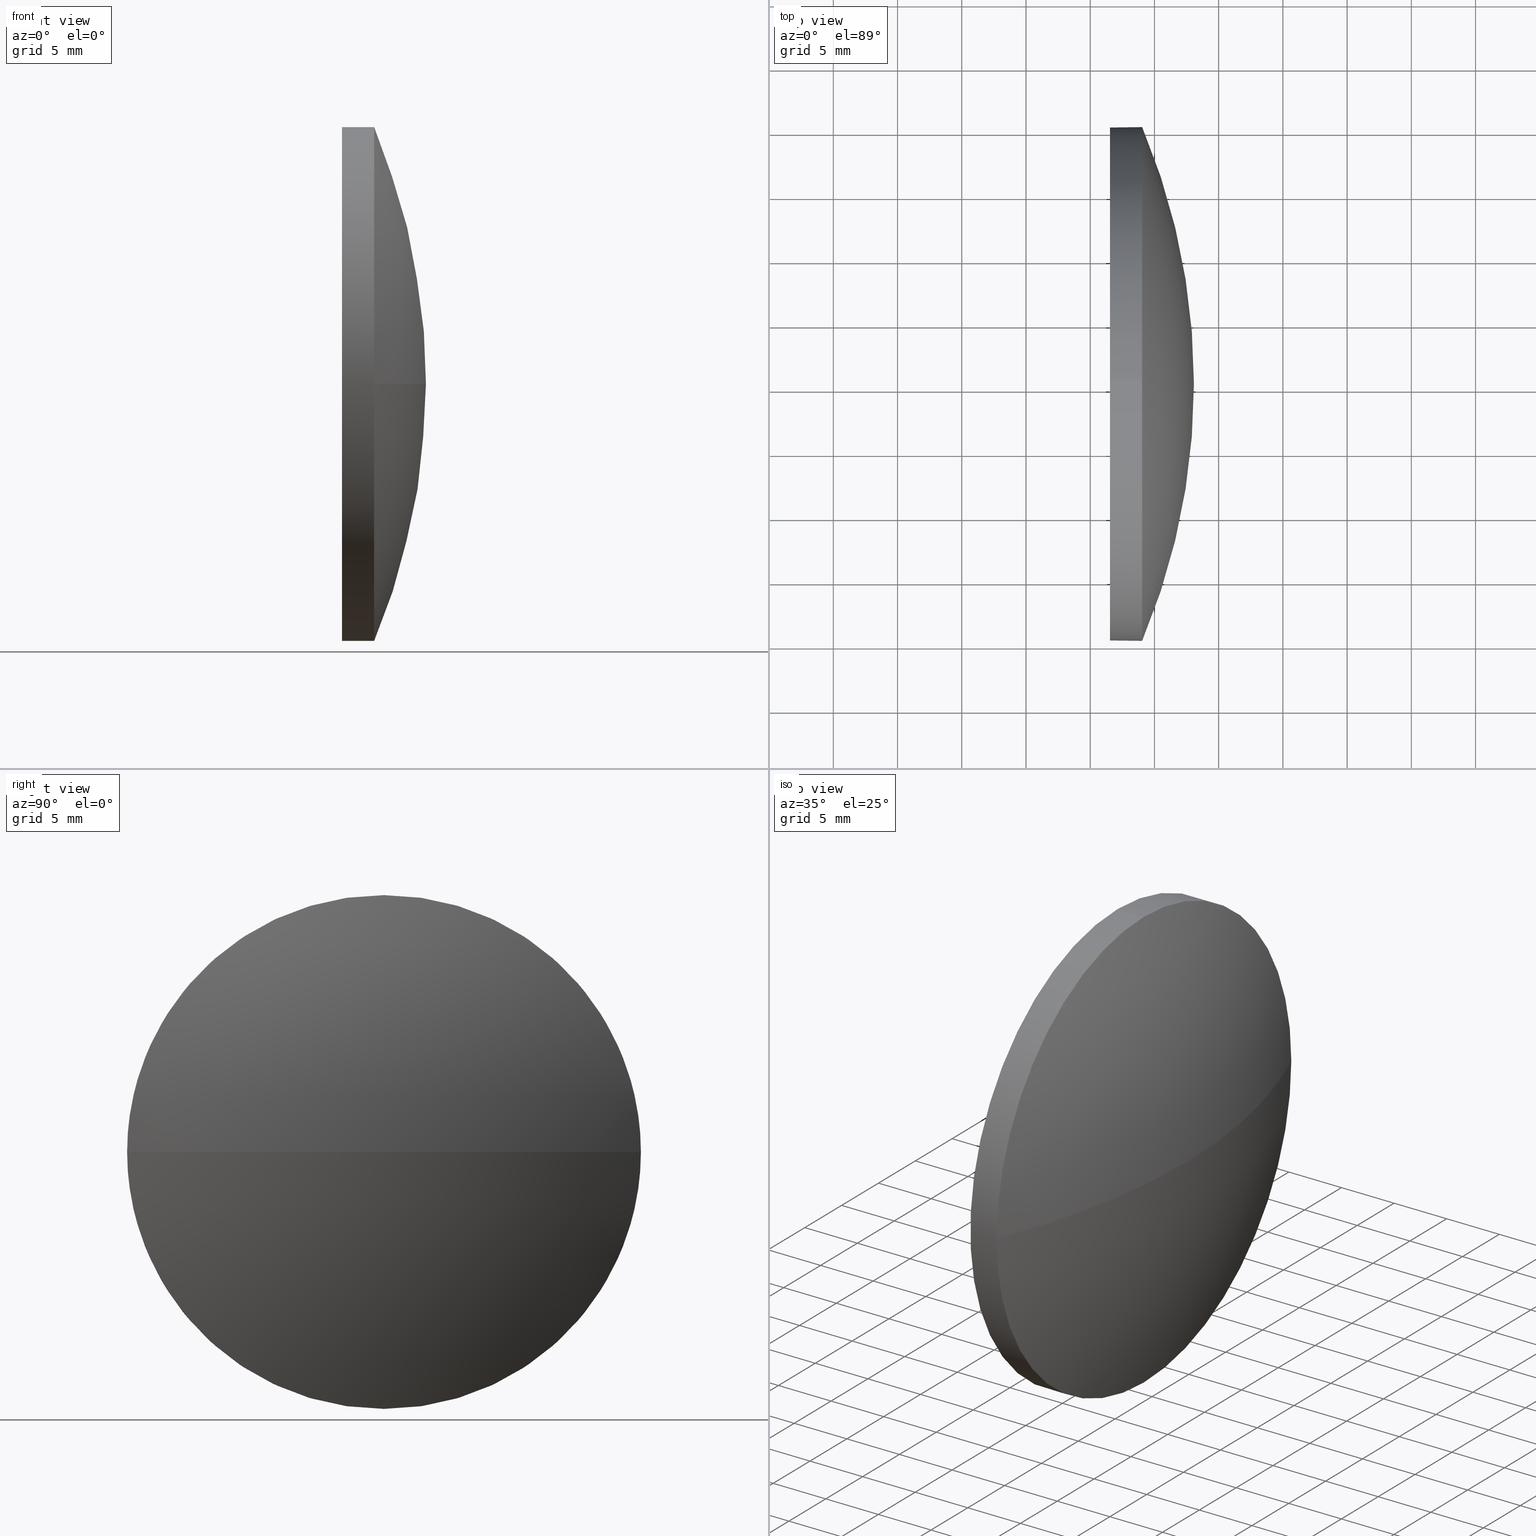
[diagram: canonical four-view strip — front | top / right | iso, engineering-drawing reading convention]
A machine part, canonical four-view strip (front | top / right | iso — engineering-drawing reading convention). The complete STEP part file that produces these views, byte-faithful:
ISO-10303-21;
HEADER;
FILE_DESCRIPTION (( 'STEP AP214' ),
    '1' );
FILE_NAME ('100144.STEP',
    '2019-05-15T07:10:39',
    ( '' ),
    ( '' ),
    'SwSTEP 2.0',
    'SolidWorks 2016',
    '' );
FILE_SCHEMA (( 'AUTOMOTIVE_DESIGN' ));
ENDSEC;

DATA;
#1 = UNCERTAINTY_MEASURE_WITH_UNIT (LENGTH_MEASURE( 1.000000000000000100E-005 ), #94, 'distance_accuracy_value', 'NONE');
#2 = VERTEX_POINT ( 'NONE', #174 ) ;
#3 = DIRECTION ( 'NONE',  ( 0.0000000000000000000, 0.0000000000000000000, 1.000000000000000000 ) ) ;
#4 = DIRECTION ( 'NONE',  ( 0.0000000000000000000, 0.0000000000000000000, 1.000000000000000000 ) ) ;
#5 = SURFACE_STYLE_USAGE ( .BOTH. , #58 ) ;
#6 = PRODUCT_RELATED_PRODUCT_CATEGORY ( 'part', '', ( #99 ) ) ;
#7 = ORIENTED_EDGE ( 'NONE', *, *, #108, .T. ) ;
#8 = CARTESIAN_POINT ( 'NONE',  ( 564.0452585807870500, 105.2757761791660600, 0.0000000000000000000 ) ) ;
#9 =( GEOMETRIC_REPRESENTATION_CONTEXT ( 3 ) GLOBAL_UNCERTAINTY_ASSIGNED_CONTEXT ( ( #49 ) ) GLOBAL_UNIT_ASSIGNED_CONTEXT ( ( #133, #72, #147 ) ) REPRESENTATION_CONTEXT ( 'NONE', 'WORKASPACE' ) );
#10 = DIRECTION ( 'NONE',  ( 0.0000000000000000000, 0.0000000000000000000, -1.000000000000000000 ) ) ;
#11 = APPLICATION_CONTEXT ( 'automotive_design' ) ;
#12 = EDGE_LOOP ( 'NONE', ( #160, #173, #180, #28, #105 ) ) ;
#13 = ADVANCED_FACE ( 'NONE', ( #168 ), #145, .T. ) ;
#14 = VECTOR ( 'NONE', #176, 1000.000000000000000 ) ;
#15 = AXIS2_PLACEMENT_3D ( 'NONE', #41, #91, #163 ) ;
#16 = ADVANCED_FACE ( 'NONE', ( #177 ), #141, .T. ) ;
#17 = AXIS2_PLACEMENT_3D ( 'NONE', #85, #162, #3 ) ;
#18 = FACE_OUTER_BOUND ( 'NONE', #143, .T. ) ;
#19 = CARTESIAN_POINT ( 'NONE',  ( 564.0452585807870500, 145.2757761791659700, 2.449293598294695500E-015 ) ) ;
#20 = CARTESIAN_POINT ( 'NONE',  ( 564.0452585807870500, 125.2757761791659600, 20.00000000000001800 ) ) ;
#21 = CARTESIAN_POINT ( 'NONE',  ( 564.0452585807870500, 125.2757761791659600, 0.0000000000000000000 ) ) ;
#22 = DIRECTION ( 'NONE',  ( 1.000000000000000000, 0.0000000000000000000, 0.0000000000000000000 ) ) ;
#23 = CIRCLE ( 'NONE', #15, 20.00000000000001800 ) ;
#24 = VERTEX_POINT ( 'NONE', #19 ) ;
#25 = DIRECTION ( 'NONE',  ( 1.000000000000000000, 0.0000000000000000000, 0.0000000000000000000 ) ) ;
#26 = FILL_AREA_STYLE ('',( #138 ) ) ;
#27 = AXIS2_PLACEMENT_3D ( 'NONE', #104, #132, #106 ) ;
#28 = ORIENTED_EDGE ( 'NONE', *, *, #96, .T. ) ;
#29 = LINE ( 'NONE', #164, #14 ) ;
#30 = ADVANCED_FACE ( 'NONE', ( #45 ), #101, .T. ) ;
#31 = PRESENTATION_STYLE_ASSIGNMENT (( #175 ) ) ;
#32 = SURFACE_SIDE_STYLE ('',( #40 ) ) ;
#33 = CARTESIAN_POINT ( 'NONE',  ( 561.5452585807870500, 125.2757761791659600, 20.00000000000001800 ) ) ;
#34 = CARTESIAN_POINT ( 'NONE',  ( 556.8507154002099900, 125.2757761791659600, 0.0000000000000000000 ) ) ;
#35 = ORIENTED_EDGE ( 'NONE', *, *, #69, .F. ) ;
#36 = DIRECTION ( 'NONE',  ( -1.000000000000000000, -0.0000000000000000000, -0.0000000000000000000 ) ) ;
#37 = PRESENTATION_LAYER_ASSIGNMENT (  '', '', ( #129 ) ) ;
#38 = FILL_AREA_STYLE_COLOUR ( '', #71 ) ;
#39 = CARTESIAN_POINT ( 'NONE',  ( 516.4324670175117300, 125.2757761791660700, 0.0000000000000000000 ) ) ;
#40 = SURFACE_STYLE_FILL_AREA ( #54 ) ;
#41 = CARTESIAN_POINT ( 'NONE',  ( 564.0452585807870500, 125.2757761791659600, 0.0000000000000000000 ) ) ;
#42 =( NAMED_UNIT ( * ) PLANE_ANGLE_UNIT ( ) SI_UNIT ( $, .RADIAN. ) );
#43 =( NAMED_UNIT ( * ) SI_UNIT ( $, .STERADIAN. ) SOLID_ANGLE_UNIT ( ) );
#44 = DIRECTION ( 'NONE',  ( 0.0000000000000000000, 0.0000000000000000000, 1.000000000000000000 ) ) ;
#45 = FACE_OUTER_BOUND ( 'NONE', #186, .T. ) ;
#46 = AXIS2_PLACEMENT_3D ( 'NONE', #125, #165, #44 ) ;
#47 = ORIENTED_EDGE ( 'NONE', *, *, #146, .T. ) ;
#48 = VERTEX_POINT ( 'NONE', #115 ) ;
#49 = UNCERTAINTY_MEASURE_WITH_UNIT (LENGTH_MEASURE( 1.000000000000000100E-005 ), #133, 'distance_accuracy_value', 'NONE');
#50 = ADVANCED_FACE ( 'NONE', ( #18 ), #84, .T. ) ;
#51 = ORIENTED_EDGE ( 'NONE', *, *, #136, .T. ) ;
#52 = CARTESIAN_POINT ( 'NONE',  ( 561.5452585807870500, 125.2757761791659600, -20.00000000000001800 ) ) ;
#53 = PRODUCT_DEFINITION_CONTEXT ( 'detailed design', #11, 'design' ) ;
#54 = FILL_AREA_STYLE ('',( #38 ) ) ;
#55 = ORIENTED_EDGE ( 'NONE', *, *, #112, .T. ) ;
#56 = APPLICATION_PROTOCOL_DEFINITION ( 'draft international standard', 'automotive_design', 1998, #11 ) ;
#57 = DIRECTION ( 'NONE',  ( -1.000000000000000000, -0.0000000000000000000, -0.0000000000000000000 ) ) ;
#58 = SURFACE_SIDE_STYLE ('',( #124 ) ) ;
#59 =( NAMED_UNIT ( * ) SI_UNIT ( $, .STERADIAN. ) SOLID_ANGLE_UNIT ( ) );
#60 = AXIS2_PLACEMENT_3D ( 'NONE', #39, #10, #64 ) ;
#61 = FACE_OUTER_BOUND ( 'NONE', #117, .T. ) ;
#62 = CIRCLE ( 'NONE', #60, 51.64279156327522500 ) ;
#63 = DIRECTION ( 'NONE',  ( 0.0000000000000000000, -1.000000000000000000, 0.0000000000000000000 ) ) ;
#64 = DIRECTION ( 'NONE',  ( -1.000000000000000000, 0.0000000000000000000, 0.0000000000000000000 ) ) ;
#65 = CARTESIAN_POINT ( 'NONE',  ( 0.0000000000000000000, 0.0000000000000000000, 0.0000000000000000000 ) ) ;
#66 = PRODUCT_CONTEXT ( 'NONE', #77, 'mechanical' ) ;
#67 = COLOUR_RGB ( '',1.000000000000000000, 1.000000000000000000, 1.000000000000000000 ) ;
#68 = ORIENTED_EDGE ( 'NONE', *, *, #112, .F. ) ;
#69 = EDGE_CURVE ( 'NONE', #2, #24, #182, .T. ) ;
#70 = CIRCLE ( 'NONE', #17, 20.00000000000001800 ) ;
#71 = COLOUR_RGB ( '',1.000000000000000000, 1.000000000000000000, 1.000000000000000000 ) ;
#72 =( NAMED_UNIT ( * ) PLANE_ANGLE_UNIT ( ) SI_UNIT ( $, .RADIAN. ) );
#73 = CARTESIAN_POINT ( 'NONE',  ( 556.8507154002099900, 125.2757761791659600, 0.0000000000000000000 ) ) ;
#74 = CARTESIAN_POINT ( 'NONE',  ( 556.8507154002099900, 125.2757761791659600, 20.00000000000001800 ) ) ;
#75 = VERTEX_POINT ( 'NONE', #20 ) ;
#76 = DIRECTION ( 'NONE',  ( 0.0000000000000000000, -1.224646799147353200E-016, 1.000000000000000000 ) ) ;
#77 = APPLICATION_CONTEXT ( 'automotive_design' ) ;
#78 = ORIENTED_EDGE ( 'NONE', *, *, #127, .F. ) ;
#79 = CARTESIAN_POINT ( 'NONE',  ( 564.0452585807870500, 125.2757761791659600, 0.0000000000000000000 ) ) ;
#80 = AXIS2_PLACEMENT_3D ( 'NONE', #110, #25, #179 ) ;
#81 = VERTEX_POINT ( 'NONE', #33 ) ;
#82 = VERTEX_POINT ( 'NONE', #52 ) ;
#83 =( GEOMETRIC_REPRESENTATION_CONTEXT ( 3 ) GLOBAL_UNCERTAINTY_ASSIGNED_CONTEXT ( ( #1 ) ) GLOBAL_UNIT_ASSIGNED_CONTEXT ( ( #94, #155, #59 ) ) REPRESENTATION_CONTEXT ( 'NONE', 'WORKASPACE' ) );
#84 = SPHERICAL_SURFACE ( 'NONE', #183, 51.64279156327522500 ) ;
#85 = CARTESIAN_POINT ( 'NONE',  ( 564.0452585807870500, 125.2757761791659600, 0.0000000000000000000 ) ) ;
#86 = DIRECTION ( 'NONE',  ( -1.000000000000000000, -0.0000000000000000000, -0.0000000000000000000 ) ) ;
#87 = MECHANICAL_DESIGN_GEOMETRIC_PRESENTATION_REPRESENTATION (  '', ( #121 ), #83 ) ;
#88 = DIRECTION ( 'NONE',  ( -1.000000000000000000, -0.0000000000000000000, -0.0000000000000000000 ) ) ;
#89 = AXIS2_PLACEMENT_3D ( 'NONE', #73, #88, #4 ) ;
#90 =( GEOMETRIC_REPRESENTATION_CONTEXT ( 3 ) GLOBAL_UNCERTAINTY_ASSIGNED_CONTEXT ( ( #103 ) ) GLOBAL_UNIT_ASSIGNED_CONTEXT ( ( #123, #42, #43 ) ) REPRESENTATION_CONTEXT ( 'NONE', 'WORKASPACE' ) );
#91 = DIRECTION ( 'NONE',  ( -1.000000000000000000, -0.0000000000000000000, -0.0000000000000000000 ) ) ;
#92 = CIRCLE ( 'NONE', #161, 20.00000000000001800 ) ;
#93 = EDGE_LOOP ( 'NONE', ( #156, #109, #114, #137, #55 ) ) ;
#94 =( LENGTH_UNIT ( ) NAMED_UNIT ( * ) SI_UNIT ( .MILLI., .METRE. ) );
#95 = PRESENTATION_LAYER_ASSIGNMENT (  '', '', ( #121 ) ) ;
#96 = EDGE_CURVE ( 'NONE', #75, #81, #128, .T. ) ;
#97 = MANIFOLD_SOLID_BREP ( '��ת1', #111 ) ;
#98 = CIRCLE ( 'NONE', #169, 20.00000000000001800 ) ;
#99 = PRODUCT ( '100144', '100144', '', ( #66 ) ) ;
#100 = AXIS2_PLACEMENT_3D ( 'NONE', #65, #151, #22 ) ;
#101 = SPHERICAL_SURFACE ( 'NONE', #27, 51.64279156327522500 ) ;
#102 = EDGE_CURVE ( 'NONE', #24, #48, #70, .T. ) ;
#103 = UNCERTAINTY_MEASURE_WITH_UNIT (LENGTH_MEASURE( 1.000000000000000100E-005 ), #123, 'distance_accuracy_value', 'NONE');
#104 = CARTESIAN_POINT ( 'NONE',  ( 516.4324670175117300, 125.2757761791660700, 0.0000000000000000000 ) ) ;
#105 = ORIENTED_EDGE ( 'NONE', *, *, #136, .F. ) ;
#106 = DIRECTION ( 'NONE',  ( 0.0000000000000000000, -1.000000000000000000, 0.0000000000000000000 ) ) ;
#107 = DIRECTION ( 'NONE',  ( -1.000000000000000000, -0.0000000000000000000, -0.0000000000000000000 ) ) ;
#108 = EDGE_CURVE ( 'NONE', #81, #82, #92, .T. ) ;
#109 = ORIENTED_EDGE ( 'NONE', *, *, #184, .T. ) ;
#110 = CARTESIAN_POINT ( 'NONE',  ( 561.5452585807870500, 125.2757761791659600, 0.0000000000000000000 ) ) ;
#111 = CLOSED_SHELL ( 'NONE', ( #13, #30, #50, #16, #144 ) ) ;
#112 = EDGE_CURVE ( 'NONE', #75, #24, #172, .T. ) ;
#113 = ORIENTED_EDGE ( 'NONE', *, *, #69, .T. ) ;
#114 = ORIENTED_EDGE ( 'NONE', *, *, #108, .F. ) ;
#115 = CARTESIAN_POINT ( 'NONE',  ( 564.0452585807870500, 125.2757761791659600, -20.00000000000001800 ) ) ;
#116 = DIRECTION ( 'NONE',  ( 0.0000000000000000000, 0.0000000000000000000, 1.000000000000000000 ) ) ;
#117 = EDGE_LOOP ( 'NONE', ( #7, #51 ) ) ;
#118 = DIRECTION ( 'NONE',  ( 0.0000000000000000000, -1.000000000000000000, -1.224646799147353500E-016 ) ) ;
#119 = AXIS2_PLACEMENT_3D ( 'NONE', #34, #36, #148 ) ;
#120 = ORIENTED_EDGE ( 'NONE', *, *, #142, .F. ) ;
#121 = STYLED_ITEM ( 'NONE', ( #152 ), #171 ) ;
#122 = DIRECTION ( 'NONE',  ( 0.0000000000000000000, 0.0000000000000000000, 1.000000000000000000 ) ) ;
#123 =( LENGTH_UNIT ( ) NAMED_UNIT ( * ) SI_UNIT ( .MILLI., .METRE. ) );
#124 = SURFACE_STYLE_FILL_AREA ( #26 ) ;
#125 = CARTESIAN_POINT ( 'NONE',  ( 561.5452585807870500, 125.2757761791659600, 0.0000000000000000000 ) ) ;
#126 = AXIS2_PLACEMENT_3D ( 'NONE', #21, #166, #178 ) ;
#127 = EDGE_CURVE ( 'NONE', #130, #75, #98, .T. ) ;
#128 = LINE ( 'NONE', #74, #153 ) ;
#129 = STYLED_ITEM ( 'NONE', ( #31 ), #97 ) ;
#130 = VERTEX_POINT ( 'NONE', #8 ) ;
#131 = CARTESIAN_POINT ( 'NONE',  ( 561.5452585807870500, 125.2757761791659600, 0.0000000000000000000 ) ) ;
#132 = DIRECTION ( 'NONE',  ( 0.0000000000000000000, 0.0000000000000000000, 1.000000000000000000 ) ) ;
#133 =( LENGTH_UNIT ( ) NAMED_UNIT ( * ) SI_UNIT ( .MILLI., .METRE. ) );
#134 = APPLICATION_PROTOCOL_DEFINITION ( 'draft international standard', 'automotive_design', 1998, #77 ) ;
#135 = PLANE ( 'NONE',  #80 ) ;
#136 = EDGE_CURVE ( 'NONE', #82, #81, #185, .T. ) ;
#137 = ORIENTED_EDGE ( 'NONE', *, *, #96, .F. ) ;
#138 = FILL_AREA_STYLE_COLOUR ( '', #67 ) ;
#139 = PRODUCT_DEFINITION_FORMATION_WITH_SPECIFIED_SOURCE ( '�κ�', '', #99, .NOT_KNOWN. ) ;
#140 = MECHANICAL_DESIGN_GEOMETRIC_PRESENTATION_REPRESENTATION (  '', ( #129 ), #9 ) ;
#141 = CYLINDRICAL_SURFACE ( 'NONE', #119, 20.00000000000001800 ) ;
#142 = EDGE_CURVE ( 'NONE', #48, #130, #23, .T. ) ;
#143 = EDGE_LOOP ( 'NONE', ( #35, #47, #120, #170 ) ) ;
#144 = ADVANCED_FACE ( 'NONE', ( #61 ), #135, .F. ) ;
#145 = CYLINDRICAL_SURFACE ( 'NONE', #89, 20.00000000000001800 ) ;
#146 = EDGE_CURVE ( 'NONE', #2, #130, #62, .T. ) ;
#147 =( NAMED_UNIT ( * ) SI_UNIT ( $, .STERADIAN. ) SOLID_ANGLE_UNIT ( ) );
#148 = DIRECTION ( 'NONE',  ( 0.0000000000000000000, 0.0000000000000000000, 1.000000000000000000 ) ) ;
#149 = CARTESIAN_POINT ( 'NONE',  ( 516.4324670175117300, 125.2757761791660700, 0.0000000000000000000 ) ) ;
#150 = CARTESIAN_POINT ( 'NONE',  ( 516.4324670175117300, 125.2757761791660700, 0.0000000000000000000 ) ) ;
#151 = DIRECTION ( 'NONE',  ( 0.0000000000000000000, 0.0000000000000000000, 1.000000000000000000 ) ) ;
#152 = PRESENTATION_STYLE_ASSIGNMENT (( #5 ) ) ;
#153 = VECTOR ( 'NONE', #86, 1000.000000000000000 ) ;
#154 = DIRECTION ( 'NONE',  ( 0.0000000000000000000, 0.0000000000000000000, 1.000000000000000000 ) ) ;
#155 =( NAMED_UNIT ( * ) PLANE_ANGLE_UNIT ( ) SI_UNIT ( $, .RADIAN. ) );
#156 = ORIENTED_EDGE ( 'NONE', *, *, #102, .T. ) ;
#157 = PRODUCT_DEFINITION_SHAPE ( 'NONE', 'NONE',  #181 ) ;
#158 = ORIENTED_EDGE ( 'NONE', *, *, #146, .F. ) ;
#159 = AXIS2_PLACEMENT_3D ( 'NONE', #149, #76, #118 ) ;
#160 = ORIENTED_EDGE ( 'NONE', *, *, #184, .F. ) ;
#161 = AXIS2_PLACEMENT_3D ( 'NONE', #131, #107, #122 ) ;
#162 = DIRECTION ( 'NONE',  ( -1.000000000000000000, -0.0000000000000000000, -0.0000000000000000000 ) ) ;
#163 = DIRECTION ( 'NONE',  ( 0.0000000000000000000, 0.0000000000000000000, 1.000000000000000000 ) ) ;
#164 = CARTESIAN_POINT ( 'NONE',  ( 556.8507154002099900, 125.2757761791659600, -20.00000000000001800 ) ) ;
#165 = DIRECTION ( 'NONE',  ( -1.000000000000000000, -0.0000000000000000000, -0.0000000000000000000 ) ) ;
#166 = DIRECTION ( 'NONE',  ( -1.000000000000000000, -0.0000000000000000000, -0.0000000000000000000 ) ) ;
#167 = SHAPE_DEFINITION_REPRESENTATION ( #157, #171 ) ;
#168 = FACE_OUTER_BOUND ( 'NONE', #93, .T. ) ;
#169 = AXIS2_PLACEMENT_3D ( 'NONE', #79, #57, #154 ) ;
#170 = ORIENTED_EDGE ( 'NONE', *, *, #102, .F. ) ;
#171 = ADVANCED_BREP_SHAPE_REPRESENTATION ( '100144', ( #97, #100 ), #90 ) ;
#172 = CIRCLE ( 'NONE', #126, 20.00000000000001800 ) ;
#173 = ORIENTED_EDGE ( 'NONE', *, *, #142, .T. ) ;
#174 = CARTESIAN_POINT ( 'NONE',  ( 568.0752585807870200, 125.2757761791660700, 0.0000000000000000000 ) ) ;
#175 = SURFACE_STYLE_USAGE ( .BOTH. , #32 ) ;
#176 = DIRECTION ( 'NONE',  ( -1.000000000000000000, -0.0000000000000000000, -0.0000000000000000000 ) ) ;
#177 = FACE_OUTER_BOUND ( 'NONE', #12, .T. ) ;
#178 = DIRECTION ( 'NONE',  ( 0.0000000000000000000, 0.0000000000000000000, 1.000000000000000000 ) ) ;
#179 = DIRECTION ( 'NONE',  ( 0.0000000000000000000, 0.0000000000000000000, -1.000000000000000000 ) ) ;
#180 = ORIENTED_EDGE ( 'NONE', *, *, #127, .T. ) ;
#181 = PRODUCT_DEFINITION ( 'δ֪', '', #139, #53 ) ;
#182 = CIRCLE ( 'NONE', #159, 51.64279156327522500 ) ;
#183 = AXIS2_PLACEMENT_3D ( 'NONE', #150, #116, #63 ) ;
#184 = EDGE_CURVE ( 'NONE', #48, #82, #29, .T. ) ;
#185 = CIRCLE ( 'NONE', #46, 20.00000000000001800 ) ;
#186 = EDGE_LOOP ( 'NONE', ( #158, #113, #68, #78 ) ) ;
ENDSEC;
END-ISO-10303-21;
